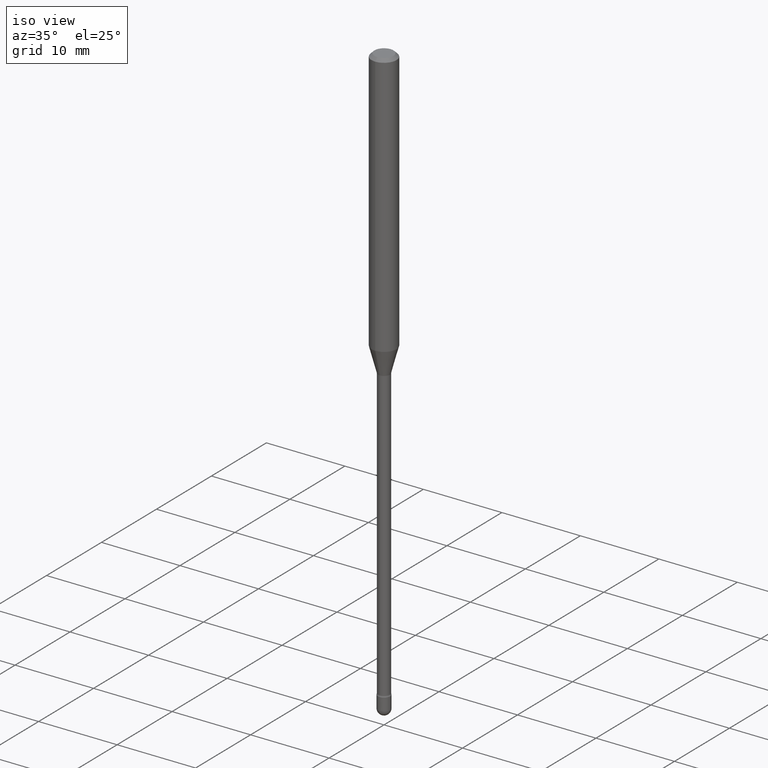
[diagram: clean part render]
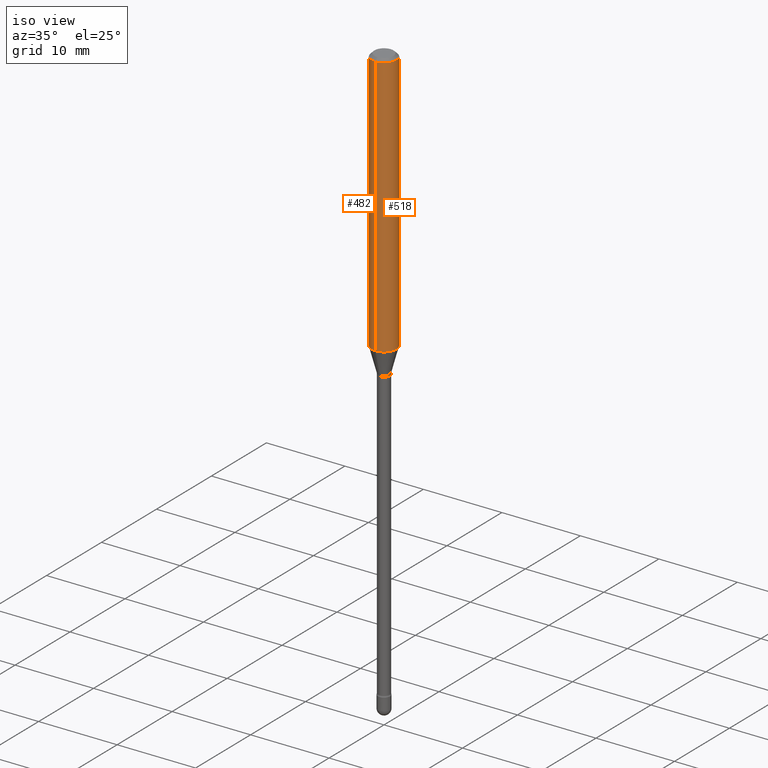
[diagram: same view with one multi-face feature highlighted, each face labeled with its STEP entity id]
A machine part, iso view. The highlighted faces form ONE feature: a constant-radius fillet chain: 2 tangent blend faces with common blend radius 1.5875 mm. The faces share edges in the B-rep.
Their STEP definitions:
[1] entity #482 (Cylinder):
#2 = CARTESIAN_POINT ( 'NONE',  ( -4.364351673553912750E-16, -0.06250000000000005551, -0.01499999999999986587 ) ) ;
#5 = EDGE_LOOP ( 'NONE', ( #512, #316, #355, #538 ) ) ;
#19 = CARTESIAN_POINT ( 'NONE',  ( -1.169113584055446105E-44, 1.669184350826100908E-30, 4.780733988912460139E-16 ) ) ;
#22 = EDGE_CURVE ( 'NONE', #56, #147, #191, .T. ) ;
#23 = DIRECTION ( 'NONE',  ( -2.445463065132452416E-29, 3.491489560357349988E-15, 1.000000000000000000 ) ) ;
#24 = CIRCLE ( 'NONE', #325, 0.06250000000000000000 ) ;
#56 = VERTEX_POINT ( 'NONE', #160 ) ;
#60 = CARTESIAN_POINT ( 'NONE',  ( 4.440892098500947623E-16, 0.06249999999999535788, -1.325536105567578282 ) ) ;
#97 = FACE_OUTER_BOUND ( 'NONE', #5, .T. ) ;
#147 = VERTEX_POINT ( 'NONE', #2 ) ;
#150 = DIRECTION ( 'NONE',  ( -2.445463065132452416E-29, 3.491489560357349594E-15, 1.000000000000000000 ) ) ;
#160 = CARTESIAN_POINT ( 'NONE',  ( -4.364351673553594247E-16, -0.06250000000000464906, -1.325536105567577838 ) ) ;
#165 = DIRECTION ( 'NONE',  ( -2.445463065132452416E-29, 3.491489560357349988E-15, 1.000000000000000000 ) ) ;
#176 = AXIS2_PLACEMENT_3D ( 'NONE', #19, #198, #267 ) ;
#191 = LINE ( 'NONE', #368, #217 ) ;
#198 = DIRECTION ( 'NONE',  ( -2.445463065132452416E-29, 3.491489560357349594E-15, 1.000000000000000000 ) ) ;
#217 = VECTOR ( 'NONE', #23, 39.37007874015748143 ) ;
#231 = DIRECTION ( 'NONE',  ( -6.982962677686265922E-15, -1.000000000000000000, 4.370956789862821150E-15 ) ) ;
#237 = CYLINDRICAL_SURFACE ( 'NONE', #176, 0.06250000000000000000 ) ;
#238 = CIRCLE ( 'NONE', #288, 0.06250000000000000000 ) ;
#267 = DIRECTION ( 'NONE',  ( -6.982962677686265922E-15, -1.000000000000000000, 3.491489560357349594E-15 ) ) ;
#269 = DIRECTION ( 'NONE',  ( -6.982962677686265922E-15, -1.000000000000000000, 3.483106191921935554E-15 ) ) ;
#281 = VERTEX_POINT ( 'NONE', #349 ) ;
#288 = AXIS2_PLACEMENT_3D ( 'NONE', #536, #527, #269 ) ;
#316 = ORIENTED_EDGE ( 'NONE', *, *, #494, .T. ) ;
#325 = AXIS2_PLACEMENT_3D ( 'NONE', #397, #150, #231 ) ;
#326 = LINE ( 'NONE', #500, #387 ) ;
#349 = CARTESIAN_POINT ( 'NONE',  ( 4.440892098500951567E-16, 0.06249999999999995143, -0.01500000000000030129 ) ) ;
#355 = ORIENTED_EDGE ( 'NONE', *, *, #22, .T. ) ;
#368 = CARTESIAN_POINT ( 'NONE',  ( -4.364351673553916201E-16, -0.06250000000000000000, 6.962914964135804129E-16 ) ) ;
#382 = EDGE_CURVE ( 'NONE', #281, #147, #238, .T. ) ;
#387 = VECTOR ( 'NONE', #165, 39.37007874015748143 ) ;
#397 = CARTESIAN_POINT ( 'NONE',  ( 3.241549587665023205E-29, -4.628095474465936860E-15, -1.325536105567578060 ) ) ;
#478 = VERTEX_POINT ( 'NONE', #60 ) ;
#482 = ADVANCED_FACE ( 'NONE', ( #97 ), #237, .T. ) ;
#494 = EDGE_CURVE ( 'NONE', #478, #56, #24, .T. ) ;
#498 = EDGE_CURVE ( 'NONE', #478, #281, #326, .T. ) ;
#500 = CARTESIAN_POINT ( 'NONE',  ( 4.440892098500625669E-16, 0.06250000000000000000, 2.598553013689117136E-16 ) ) ;
#512 = ORIENTED_EDGE ( 'NONE', *, *, #498, .F. ) ;
#527 = DIRECTION ( 'NONE',  ( -2.445463065132452416E-29, 3.491489560357349594E-15, 1.000000000000000000 ) ) ;
#536 = CARTESIAN_POINT ( 'NONE',  ( 3.668194597698698645E-31, -5.237234340536053530E-17, -0.01500000000000008271 ) ) ;
#538 = ORIENTED_EDGE ( 'NONE', *, *, #382, .F. ) ;
[2] entity #518 (Cylinder):
#2 = CARTESIAN_POINT ( 'NONE',  ( -4.364351673553912750E-16, -0.06250000000000005551, -0.01499999999999986587 ) ) ;
#22 = EDGE_CURVE ( 'NONE', #56, #147, #191, .T. ) ;
#23 = DIRECTION ( 'NONE',  ( -2.445463065132452416E-29, 3.491489560357349988E-15, 1.000000000000000000 ) ) ;
#29 = CARTESIAN_POINT ( 'NONE',  ( 3.241549587665023205E-29, -4.628095474465936860E-15, -1.325536105567578060 ) ) ;
#56 = VERTEX_POINT ( 'NONE', #160 ) ;
#60 = CARTESIAN_POINT ( 'NONE',  ( 4.440892098500947623E-16, 0.06249999999999535788, -1.325536105567578282 ) ) ;
#64 = DIRECTION ( 'NONE',  ( -6.982962677686265922E-15, -1.000000000000000000, 3.491489560357349594E-15 ) ) ;
#70 = FACE_OUTER_BOUND ( 'NONE', #196, .T. ) ;
#121 = AXIS2_PLACEMENT_3D ( 'NONE', #285, #554, #64 ) ;
#128 = EDGE_CURVE ( 'NONE', #56, #478, #294, .T. ) ;
#147 = VERTEX_POINT ( 'NONE', #2 ) ;
#160 = CARTESIAN_POINT ( 'NONE',  ( -4.364351673553594247E-16, -0.06250000000000464906, -1.325536105567577838 ) ) ;
#165 = DIRECTION ( 'NONE',  ( -2.445463065132452416E-29, 3.491489560357349988E-15, 1.000000000000000000 ) ) ;
#191 = LINE ( 'NONE', #368, #217 ) ;
#196 = EDGE_LOOP ( 'NONE', ( #203, #366, #225, #357 ) ) ;
#203 = ORIENTED_EDGE ( 'NONE', *, *, #128, .T. ) ;
#217 = VECTOR ( 'NONE', #23, 39.37007874015748143 ) ;
#218 = AXIS2_PLACEMENT_3D ( 'NONE', #353, #399, #356 ) ;
#225 = ORIENTED_EDGE ( 'NONE', *, *, #446, .F. ) ;
#248 = DIRECTION ( 'NONE',  ( -6.982962677686265922E-15, -1.000000000000000000, 4.370956789862821150E-15 ) ) ;
#281 = VERTEX_POINT ( 'NONE', #349 ) ;
#285 = CARTESIAN_POINT ( 'NONE',  ( -1.169113584055446105E-44, 1.669184350826100908E-30, 4.780733988912460139E-16 ) ) ;
#294 = CIRCLE ( 'NONE', #324, 0.06250000000000000000 ) ;
#324 = AXIS2_PLACEMENT_3D ( 'NONE', #29, #462, #248 ) ;
#326 = LINE ( 'NONE', #500, #387 ) ;
#349 = CARTESIAN_POINT ( 'NONE',  ( 4.440892098500951567E-16, 0.06249999999999995143, -0.01500000000000030129 ) ) ;
#353 = CARTESIAN_POINT ( 'NONE',  ( 3.668194597698698645E-31, -5.237234340536053530E-17, -0.01500000000000008271 ) ) ;
#356 = DIRECTION ( 'NONE',  ( -6.982962677686265922E-15, -1.000000000000000000, 3.483106191921935554E-15 ) ) ;
#357 = ORIENTED_EDGE ( 'NONE', *, *, #22, .F. ) ;
#366 = ORIENTED_EDGE ( 'NONE', *, *, #498, .T. ) ;
#368 = CARTESIAN_POINT ( 'NONE',  ( -4.364351673553916201E-16, -0.06250000000000000000, 6.962914964135804129E-16 ) ) ;
#374 = CYLINDRICAL_SURFACE ( 'NONE', #121, 0.06250000000000000000 ) ;
#387 = VECTOR ( 'NONE', #165, 39.37007874015748143 ) ;
#399 = DIRECTION ( 'NONE',  ( -2.445463065132452416E-29, 3.491489560357349594E-15, 1.000000000000000000 ) ) ;
#446 = EDGE_CURVE ( 'NONE', #147, #281, #472, .T. ) ;
#462 = DIRECTION ( 'NONE',  ( -2.445463065132452416E-29, 3.491489560357349594E-15, 1.000000000000000000 ) ) ;
#472 = CIRCLE ( 'NONE', #218, 0.06250000000000000000 ) ;
#478 = VERTEX_POINT ( 'NONE', #60 ) ;
#498 = EDGE_CURVE ( 'NONE', #478, #281, #326, .T. ) ;
#500 = CARTESIAN_POINT ( 'NONE',  ( 4.440892098500625669E-16, 0.06250000000000000000, 2.598553013689117136E-16 ) ) ;
#518 = ADVANCED_FACE ( 'NONE', ( #70 ), #374, .T. ) ;
#554 = DIRECTION ( 'NONE',  ( -2.445463065132452416E-29, 3.491489560357349594E-15, 1.000000000000000000 ) ) ;